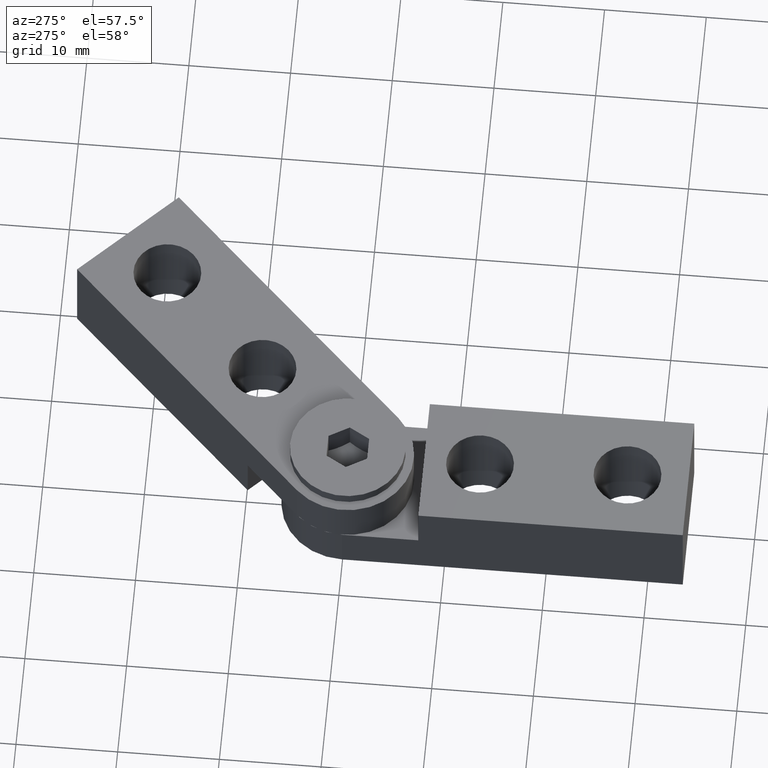
[diagram: clean part render]
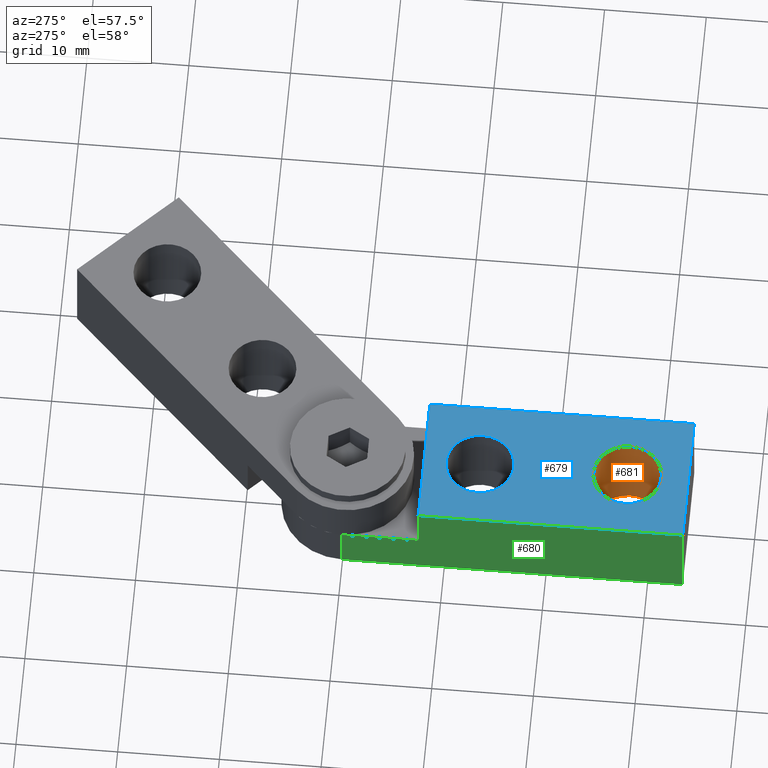
[diagram: same view with three faces highlighted in distinct colors, each labeled with its STEP entity id]
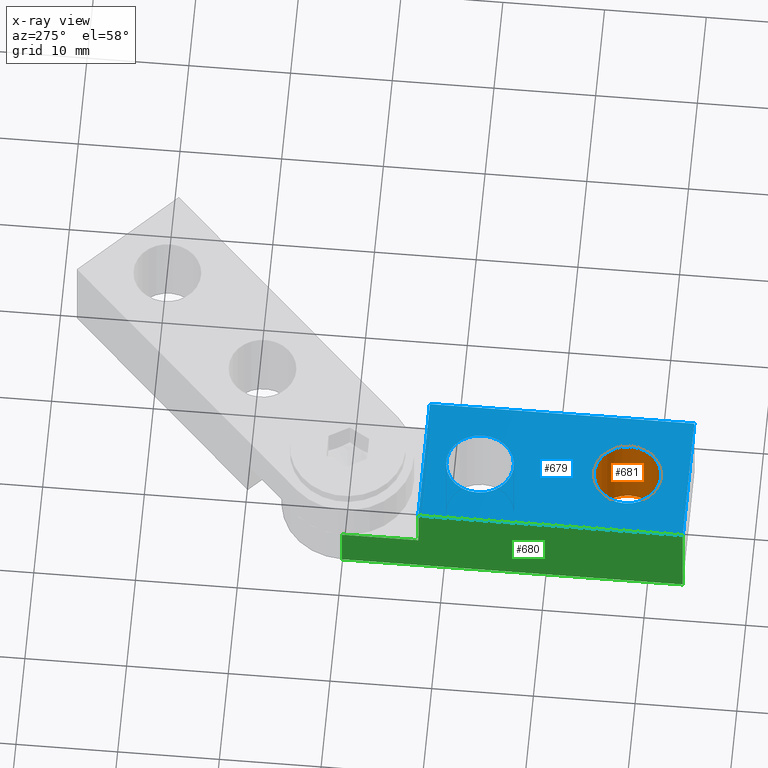
[diagram: x-ray of the same camera — body ghosted, the three highlighted faces saturated]
A machine part, auxiliary view with three faces highlighted in distinct colors.
The next image is the same camera in x-ray (body ghosted, the three faces saturated) — at least one of them is partly hidden behind the body in this view.
Their STEP definitions:

[orange] entity #681 — the highlighted cylindrical surface (bore or boss wall) has radius 3.3235 mm, axis along (0, 0, 1).
#86=FACE_OUTER_BOUND('',#125,.T.);
#125=EDGE_LOOP('',(#503,#504,#505,#506,#507));
#179=LINE('',#1122,#235);
#235=VECTOR('',#912,3.3235);
#284=CIRCLE('',#803,3.3235);
#285=CIRCLE('',#804,3.3235);
#286=CIRCLE('',#807,3.3235);
#324=VERTEX_POINT('',#1110);
#325=VERTEX_POINT('',#1111);
#328=VERTEX_POINT('',#1121);
#394=EDGE_CURVE('',#324,#325,#284,.T.);
#395=EDGE_CURVE('',#325,#324,#285,.T.);
#399=EDGE_CURVE('',#325,#328,#179,.T.);
#400=EDGE_CURVE('',#328,#328,#286,.T.);
#503=ORIENTED_EDGE('',*,*,#394,.F.);
#504=ORIENTED_EDGE('',*,*,#395,.F.);
#505=ORIENTED_EDGE('',*,*,#399,.T.);
#506=ORIENTED_EDGE('',*,*,#400,.F.);
#507=ORIENTED_EDGE('',*,*,#399,.F.);
#667=CYLINDRICAL_SURFACE('',#806,3.3235);
#681=ADVANCED_FACE('',(#86),#667,.F.);
#803=AXIS2_PLACEMENT_3D('',#1112,#901,#902);
#804=AXIS2_PLACEMENT_3D('',#1113,#903,#904);
#806=AXIS2_PLACEMENT_3D('',#1120,#910,#911);
#807=AXIS2_PLACEMENT_3D('',#1123,#913,#914);
#901=DIRECTION('center_axis',(0.,0.,-1.));
#902=DIRECTION('ref_axis',(1.,0.,0.));
#903=DIRECTION('center_axis',(0.,0.,-1.));
#904=DIRECTION('ref_axis',(1.,0.,0.));
#910=DIRECTION('center_axis',(0.,0.,1.));
#911=DIRECTION('ref_axis',(1.,0.,0.));
#912=DIRECTION('',(0.,0.,-1.));
#913=DIRECTION('center_axis',(0.,0.,1.));
#914=DIRECTION('ref_axis',(1.,0.,0.));
#1110=CARTESIAN_POINT('',(3.3235,-27.5,9.));
#1111=CARTESIAN_POINT('',(-3.3235,-27.5,9.));
#1112=CARTESIAN_POINT('Origin',(0.,-27.5,9.));
#1113=CARTESIAN_POINT('Origin',(0.,-27.5,9.));
#1120=CARTESIAN_POINT('Origin',(0.,-27.5,-1.));
#1121=CARTESIAN_POINT('',(-3.3235,-27.5,0.));
#1122=CARTESIAN_POINT('',(-3.3235,-27.5,-1.));
#1123=CARTESIAN_POINT('Origin',(0.,-27.5,0.));

[blue] entity #679 — the highlighted planar face has unit normal (0, 0, 1).
#47=FACE_BOUND('',#122,.T.);
#48=FACE_BOUND('',#123,.T.);
#61=PLANE('',#800);
#84=FACE_OUTER_BOUND('',#121,.T.);
#121=EDGE_LOOP('',(#489,#490,#491,#492));
#122=EDGE_LOOP('',(#493,#494));
#123=EDGE_LOOP('',(#495,#496));
#167=LINE('',#1088,#223);
#173=LINE('',#1102,#229);
#174=LINE('',#1104,#230);
#175=LINE('',#1105,#231);
#223=VECTOR('',#882,10.);
#229=VECTOR('',#894,10.);
#230=VECTOR('',#895,10.);
#231=VECTOR('',#896,10.);
#282=CIRCLE('',#801,3.3235);
#283=CIRCLE('',#802,3.3235);
#284=CIRCLE('',#803,3.3235);
#285=CIRCLE('',#804,3.3235);
#314=VERTEX_POINT('',#1086);
#315=VERTEX_POINT('',#1087);
#320=VERTEX_POINT('',#1101);
#321=VERTEX_POINT('',#1103);
#322=VERTEX_POINT('',#1106);
#323=VERTEX_POINT('',#1107);
#324=VERTEX_POINT('',#1110);
#325=VERTEX_POINT('',#1111);
#382=EDGE_CURVE('',#314,#315,#167,.T.);
#389=EDGE_CURVE('',#315,#320,#173,.T.);
#390=EDGE_CURVE('',#320,#321,#174,.T.);
#391=EDGE_CURVE('',#321,#314,#175,.T.);
#392=EDGE_CURVE('',#322,#323,#282,.T.);
#393=EDGE_CURVE('',#323,#322,#283,.T.);
#394=EDGE_CURVE('',#324,#325,#284,.T.);
#395=EDGE_CURVE('',#325,#324,#285,.T.);
#489=ORIENTED_EDGE('',*,*,#382,.T.);
#490=ORIENTED_EDGE('',*,*,#389,.T.);
#491=ORIENTED_EDGE('',*,*,#390,.T.);
#492=ORIENTED_EDGE('',*,*,#391,.T.);
#493=ORIENTED_EDGE('',*,*,#392,.T.);
#494=ORIENTED_EDGE('',*,*,#393,.T.);
#495=ORIENTED_EDGE('',*,*,#394,.T.);
#496=ORIENTED_EDGE('',*,*,#395,.T.);
#679=ADVANCED_FACE('',(#84,#47,#48),#61,.T.);
#800=AXIS2_PLACEMENT_3D('',#1100,#892,#893);
#801=AXIS2_PLACEMENT_3D('',#1108,#897,#898);
#802=AXIS2_PLACEMENT_3D('',#1109,#899,#900);
#803=AXIS2_PLACEMENT_3D('',#1112,#901,#902);
#804=AXIS2_PLACEMENT_3D('',#1113,#903,#904);
#882=DIRECTION('',(-1.,-1.70803542250024E-16,0.));
#892=DIRECTION('center_axis',(0.,0.,1.));
#893=DIRECTION('ref_axis',(1.,0.,0.));
#894=DIRECTION('',(0.,-1.,0.));
#895=DIRECTION('',(1.,0.,0.));
#896=DIRECTION('',(-3.31409858097062E-17,1.,0.));
#897=DIRECTION('center_axis',(0.,0.,-1.));
#898=DIRECTION('ref_axis',(1.,0.,0.));
#899=DIRECTION('center_axis',(0.,0.,-1.));
#900=DIRECTION('ref_axis',(1.,0.,0.));
#901=DIRECTION('center_axis',(0.,0.,-1.));
#902=DIRECTION('ref_axis',(1.,0.,0.));
#903=DIRECTION('center_axis',(0.,0.,-1.));
#904=DIRECTION('ref_axis',(1.,0.,0.));
#1086=CARTESIAN_POINT('',(6.5,-7.5,9.));
#1087=CARTESIAN_POINT('',(-6.5,-7.5,9.));
#1088=CARTESIAN_POINT('',(3.25,-7.5,9.));
#1100=CARTESIAN_POINT('Origin',(-6.74268059053723E-16,-15.6782283197694,
9.));
#1101=CARTESIAN_POINT('',(-6.5,-33.5,9.));
#1102=CARTESIAN_POINT('',(-6.5,0.,9.));
#1103=CARTESIAN_POINT('',(6.5,-33.5,9.));
#1104=CARTESIAN_POINT('',(-6.5,-33.5,9.));
#1105=CARTESIAN_POINT('',(6.5,-33.5,9.));
#1106=CARTESIAN_POINT('',(3.3235,-13.,9.));
#1107=CARTESIAN_POINT('',(-3.3235,-13.,9.));
#1108=CARTESIAN_POINT('Origin',(0.,-13.,9.));
#1109=CARTESIAN_POINT('Origin',(0.,-13.,9.));
#1110=CARTESIAN_POINT('',(3.3235,-27.5,9.));
#1111=CARTESIAN_POINT('',(-3.3235,-27.5,9.));
#1112=CARTESIAN_POINT('Origin',(0.,-27.5,9.));
#1113=CARTESIAN_POINT('Origin',(0.,-27.5,9.));

[green] entity #680 — the highlighted planar face has unit normal (-1, 0, 0).
#62=PLANE('',#805);
#85=FACE_OUTER_BOUND('',#124,.T.);
#124=EDGE_LOOP('',(#497,#498,#499,#500,#501,#502));
#170=LINE('',#1093,#226);
#172=LINE('',#1099,#228);
#173=LINE('',#1102,#229);
#176=LINE('',#1116,#232);
#177=LINE('',#1118,#233);
#178=LINE('',#1119,#234);
#226=VECTOR('',#885,10.);
#228=VECTOR('',#891,10.);
#229=VECTOR('',#894,10.);
#232=VECTOR('',#907,10.);
#233=VECTOR('',#908,10.);
#234=VECTOR('',#909,10.);
#315=VERTEX_POINT('',#1087);
#317=VERTEX_POINT('',#1091);
#319=VERTEX_POINT('',#1097);
#320=VERTEX_POINT('',#1101);
#326=VERTEX_POINT('',#1115);
#327=VERTEX_POINT('',#1117);
#385=EDGE_CURVE('',#315,#317,#170,.T.);
#388=EDGE_CURVE('',#317,#319,#172,.T.);
#389=EDGE_CURVE('',#315,#320,#173,.T.);
#396=EDGE_CURVE('',#326,#319,#176,.T.);
#397=EDGE_CURVE('',#326,#327,#177,.T.);
#398=EDGE_CURVE('',#327,#320,#178,.T.);
#497=ORIENTED_EDGE('',*,*,#385,.T.);
#498=ORIENTED_EDGE('',*,*,#388,.T.);
#499=ORIENTED_EDGE('',*,*,#396,.F.);
#500=ORIENTED_EDGE('',*,*,#397,.T.);
#501=ORIENTED_EDGE('',*,*,#398,.T.);
#502=ORIENTED_EDGE('',*,*,#389,.F.);
#680=ADVANCED_FACE('',(#85),#62,.T.);
#805=AXIS2_PLACEMENT_3D('',#1114,#905,#906);
#885=DIRECTION('',(0.,0.,-1.));
#891=DIRECTION('',(0.,1.,0.));
#894=DIRECTION('',(0.,-1.,0.));
#905=DIRECTION('center_axis',(-1.,0.,0.));
#906=DIRECTION('ref_axis',(0.,-1.,0.));
#907=DIRECTION('',(0.,0.,1.));
#908=DIRECTION('',(0.,-1.,0.));
#909=DIRECTION('',(0.,0.,1.));
#1087=CARTESIAN_POINT('',(-6.5,-7.5,9.));
#1091=CARTESIAN_POINT('',(-6.5,-7.5,4.5));
#1093=CARTESIAN_POINT('',(-6.5,-7.5,4.5));
#1097=CARTESIAN_POINT('',(-6.5,0.,4.5));
#1099=CARTESIAN_POINT('',(-6.5,-1.04321739655759,4.5));
#1101=CARTESIAN_POINT('',(-6.5,-33.5,9.));
#1102=CARTESIAN_POINT('',(-6.5,0.,9.));
#1114=CARTESIAN_POINT('Origin',(-6.5,0.,0.));
#1115=CARTESIAN_POINT('',(-6.5,0.,0.));
#1116=CARTESIAN_POINT('',(-6.5,0.,0.));
#1117=CARTESIAN_POINT('',(-6.5,-33.5,0.));
#1118=CARTESIAN_POINT('',(-6.5,0.,0.));
#1119=CARTESIAN_POINT('',(-6.5,-33.5,0.));